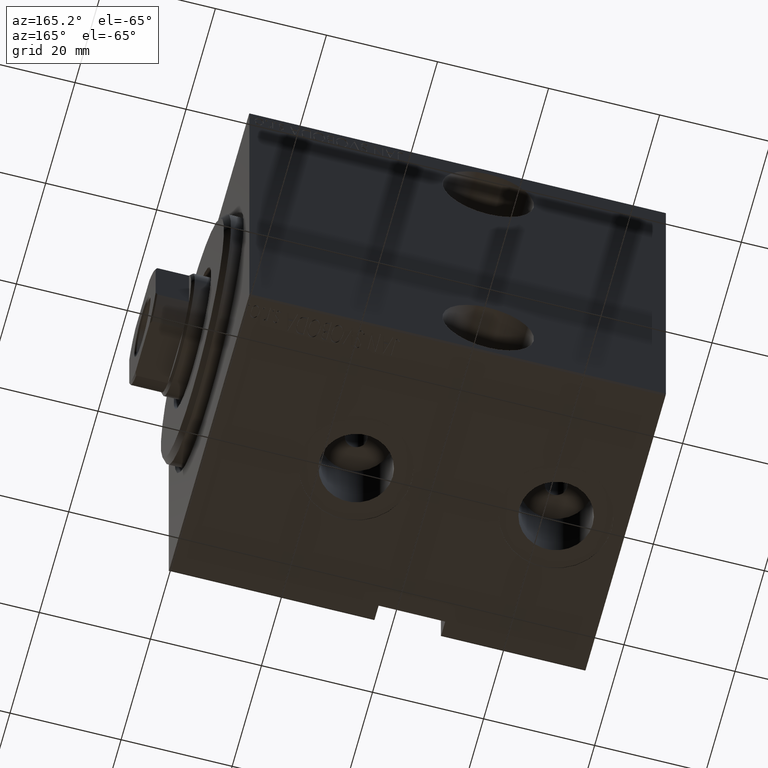
[diagram: clean part render]
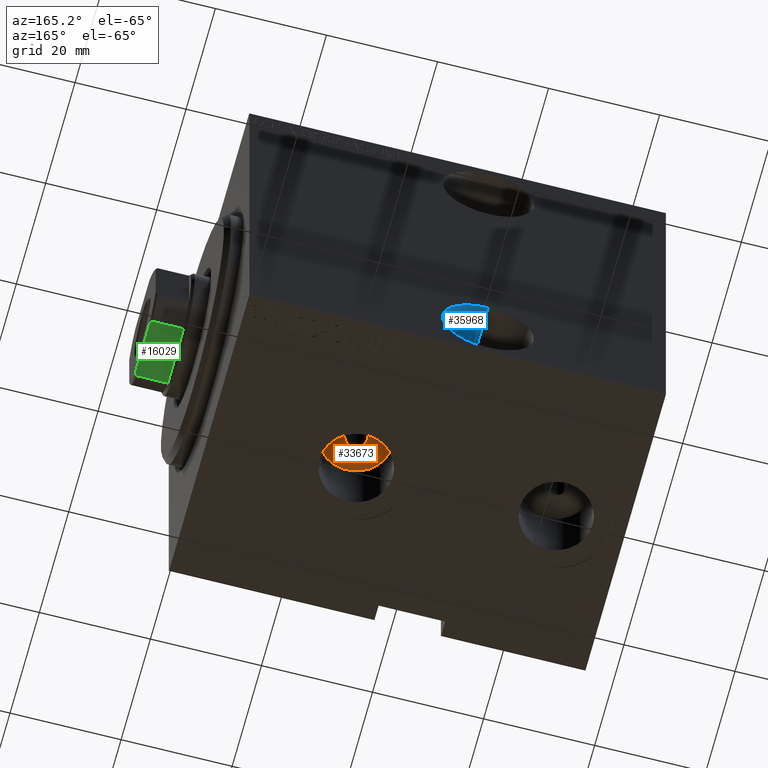
[diagram: same view with three faces highlighted in distinct colors, each labeled with its STEP entity id]
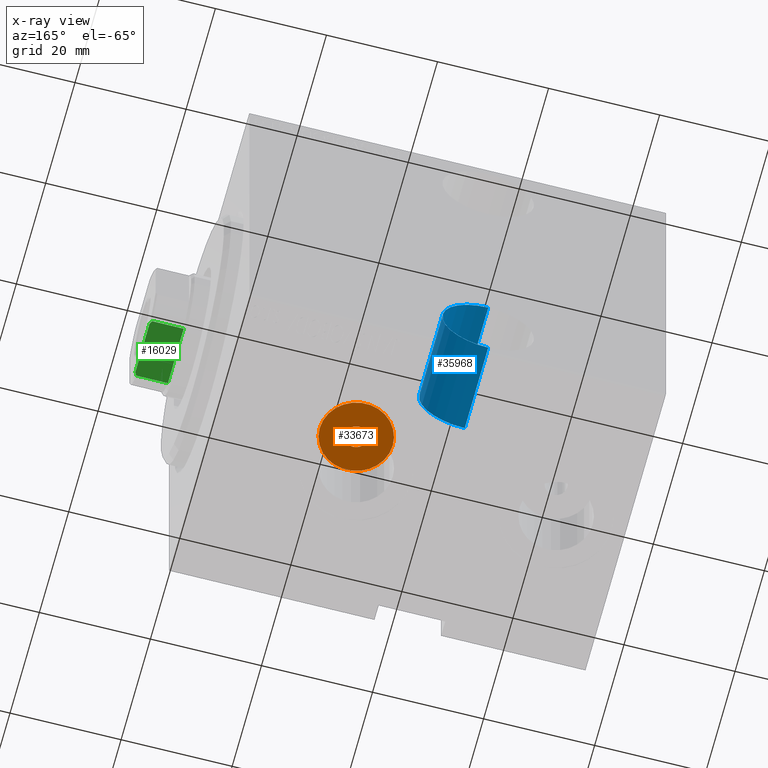
[diagram: x-ray of the same camera — body ghosted, the three highlighted faces saturated]
A machine part, auxiliary view with three faces highlighted in distinct colors.
The next image is the same camera in x-ray (body ghosted, the three faces saturated) — at least one of them is partly hidden behind the body in this view.
Their STEP definitions:

[orange] entity #33673 — the highlighted planar face has unit normal (-0, 0, -1).
#134 = CARTESIAN_POINT ( 'NONE',  ( 26.50000000000000000, -2.726986211408916281E-15, -24.50000000000000000 ) ) ;
#3264 = DIRECTION ( 'NONE',  ( 0.000000000000000000, 0.000000000000000000, -1.000000000000000000 ) ) ;
#3375 = DIRECTION ( 'NONE',  ( -1.000000000000000000, 0.000000000000000000, -0.000000000000000000 ) ) ;
#5901 = EDGE_CURVE ( 'NONE', #18575, #32849, #31322, .T. ) ;
#7254 = ORIENTED_EDGE ( 'NONE', *, *, #33618, .T. ) ;
#7514 = VERTEX_POINT ( 'NONE', #40315 ) ;
#8061 = VERTEX_POINT ( 'NONE', #10738 ) ;
#9639 = FACE_OUTER_BOUND ( 'NONE', #12896, .T. ) ;
#9712 = DIRECTION ( 'NONE',  ( -1.000000000000000000, 0.000000000000000000, 0.000000000000000000 ) ) ;
#10738 = CARTESIAN_POINT ( 'NONE',  ( 19.91999999999999815, -2.726986211408916281E-15, -24.50000000000000000 ) ) ;
#12071 = CARTESIAN_POINT ( 'NONE',  ( 26.50000000000000000, -2.726986211408916281E-15, -24.50000000000000000 ) ) ;
#12298 = ORIENTED_EDGE ( 'NONE', *, *, #5901, .F. ) ;
#12896 = EDGE_LOOP ( 'NONE', ( #25681, #7254 ) ) ;
#12954 = DIRECTION ( 'NONE',  ( 0.000000000000000000, 0.000000000000000000, -1.000000000000000000 ) ) ;
#13942 = FACE_BOUND ( 'NONE', #37915, .T. ) ;
#15678 = CIRCLE ( 'NONE', #40558, 6.580000000000002736 ) ;
#16540 = DIRECTION ( 'NONE',  ( -1.000000000000000000, 0.000000000000000000, 0.000000000000000000 ) ) ;
#16965 = DIRECTION ( 'NONE',  ( 0.000000000000000000, 0.000000000000000000, -1.000000000000000000 ) ) ;
#16986 = CARTESIAN_POINT ( 'NONE',  ( 28.49999999999999645, -2.482056851579445985E-15, -24.50000000000000000 ) ) ;
#18575 = VERTEX_POINT ( 'NONE', #16986 ) ;
#19671 = CARTESIAN_POINT ( 'NONE',  ( 26.50000000000000000, -2.726986211408916281E-15, -24.50000000000000000 ) ) ;
#21913 = AXIS2_PLACEMENT_3D ( 'NONE', #12071, #34566, #24619 ) ;
#22539 = AXIS2_PLACEMENT_3D ( 'NONE', #134, #39684, #3375 ) ;
#24151 = ORIENTED_EDGE ( 'NONE', *, *, #38487, .F. ) ;
#24591 = AXIS2_PLACEMENT_3D ( 'NONE', #26290, #16965, #16540 ) ;
#24619 = DIRECTION ( 'NONE',  ( -1.000000000000000000, 0.000000000000000000, 0.000000000000000000 ) ) ;
#25681 = ORIENTED_EDGE ( 'NONE', *, *, #32499, .T. ) ;
#25956 = DIRECTION ( 'NONE',  ( -1.000000000000000000, 0.000000000000000000, 0.000000000000000000 ) ) ;
#26290 = CARTESIAN_POINT ( 'NONE',  ( 26.50000000000000000, -2.726986211408916281E-15, -24.50000000000000000 ) ) ;
#30901 = CIRCLE ( 'NONE', #24591, 6.580000000000002736 ) ;
#31058 = CARTESIAN_POINT ( 'NONE',  ( 24.50000000000000000, -2.726986211408916281E-15, -24.50000000000000000 ) ) ;
#31322 = CIRCLE ( 'NONE', #38911, 1.999999999999998224 ) ;
#31780 = CARTESIAN_POINT ( 'NONE',  ( 26.50000000000000000, -2.726986211408916281E-15, -24.50000000000000000 ) ) ;
#32499 = EDGE_CURVE ( 'NONE', #8061, #7514, #15678, .T. ) ;
#32849 = VERTEX_POINT ( 'NONE', #31058 ) ;
#33618 = EDGE_CURVE ( 'NONE', #7514, #8061, #30901, .T. ) ;
#33673 = ADVANCED_FACE ( 'NONE', ( #13942, #9639 ), #39466, .T. ) ;
#34566 = DIRECTION ( 'NONE',  ( 0.000000000000000000, 0.000000000000000000, -1.000000000000000000 ) ) ;
#35022 = CIRCLE ( 'NONE', #21913, 1.999999999999998224 ) ;
#37915 = EDGE_LOOP ( 'NONE', ( #24151, #12298 ) ) ;
#38487 = EDGE_CURVE ( 'NONE', #32849, #18575, #35022, .T. ) ;
#38911 = AXIS2_PLACEMENT_3D ( 'NONE', #31780, #12954, #9712 ) ;
#39466 = PLANE ( 'NONE',  #22539 ) ;
#39684 = DIRECTION ( 'NONE',  ( 0.000000000000000000, 0.000000000000000000, -1.000000000000000000 ) ) ;
#40315 = CARTESIAN_POINT ( 'NONE',  ( 33.07999999999999829, -1.921168617569957634E-15, -24.50000000000000000 ) ) ;
#40558 = AXIS2_PLACEMENT_3D ( 'NONE', #19671, #3264, #25956 ) ;

[blue] entity #35968 — the highlighted cylindrical surface (partial cylindrical patch) has radius 8.25 mm, axis along (0, 1, 0).
#290 = ORIENTED_EDGE ( 'NONE', *, *, #1206, .T. ) ;
#459 = DIRECTION ( 'NONE',  ( 0.000000000000000000, 0.000000000000000000, -1.000000000000000000 ) ) ;
#1206 = EDGE_CURVE ( 'NONE', #9574, #9111, #18847, .T. ) ;
#1890 = VERTEX_POINT ( 'NONE', #33421 ) ;
#3936 = AXIS2_PLACEMENT_3D ( 'NONE', #9545, #6310, #31608 ) ;
#5562 = CARTESIAN_POINT ( 'NONE',  ( 43.00000000000001421, -11.50000000000000888, -35.75000000000000711 ) ) ;
#6310 = DIRECTION ( 'NONE',  ( -0.000000000000000000, -1.000000000000000000, 1.963837897332234442E-16 ) ) ;
#6679 = VECTOR ( 'NONE', #38785, 1000.000000000000000 ) ;
#7202 = DIRECTION ( 'NONE',  ( 0.000000000000000000, -1.000000000000000000, 1.963837897332234442E-16 ) ) ;
#9111 = VERTEX_POINT ( 'NONE', #36496 ) ;
#9545 = CARTESIAN_POINT ( 'NONE',  ( 43.00000000000001421, -11.50000000000000711, -27.50000000000000355 ) ) ;
#9574 = VERTEX_POINT ( 'NONE', #30129 ) ;
#10042 = VERTEX_POINT ( 'NONE', #13535 ) ;
#11061 = CARTESIAN_POINT ( 'NONE',  ( 43.00000000000001421, -11.50000000000000711, -27.50000000000000355 ) ) ;
#12788 = FACE_OUTER_BOUND ( 'NONE', #18138, .T. ) ;
#13535 = CARTESIAN_POINT ( 'NONE',  ( 43.00000000000001421, -11.50000000000000533, -19.25000000000000000 ) ) ;
#13796 = ORIENTED_EDGE ( 'NONE', *, *, #41425, .F. ) ;
#18138 = EDGE_LOOP ( 'NONE', ( #29162, #18866, #290, #13796 ) ) ;
#18723 = DIRECTION ( 'NONE',  ( -0.000000000000000000, -1.000000000000000000, 1.963837897332234442E-16 ) ) ;
#18847 = CIRCLE ( 'NONE', #38917, 8.250000000000003553 ) ;
#18866 = ORIENTED_EDGE ( 'NONE', *, *, #35726, .T. ) ;
#21869 = CYLINDRICAL_SURFACE ( 'NONE', #3936, 8.250000000000000000 ) ;
#25350 = CIRCLE ( 'NONE', #26746, 8.250000000000000000 ) ;
#26186 = CARTESIAN_POINT ( 'NONE',  ( 43.00000000000001421, -27.50000000000000711, -27.50000000000000000 ) ) ;
#26746 = AXIS2_PLACEMENT_3D ( 'NONE', #11061, #7202, #41101 ) ;
#26838 = VECTOR ( 'NONE', #18723, 1000.000000000000000 ) ;
#29162 = ORIENTED_EDGE ( 'NONE', *, *, #32261, .F. ) ;
#29490 = LINE ( 'NONE', #32532, #6679 ) ;
#30129 = CARTESIAN_POINT ( 'NONE',  ( 43.00000000000001421, -27.50000000000000711, -19.24999999999999645 ) ) ;
#31608 = DIRECTION ( 'NONE',  ( 0.000000000000000000, -2.102695122396129916E-16, -1.000000000000000000 ) ) ;
#32261 = EDGE_CURVE ( 'NONE', #10042, #1890, #25350, .T. ) ;
#32532 = CARTESIAN_POINT ( 'NONE',  ( 43.00000000000001421, -11.50000000000000533, -19.25000000000000000 ) ) ;
#33421 = CARTESIAN_POINT ( 'NONE',  ( 43.00000000000001421, -11.50000000000000888, -35.75000000000000711 ) ) ;
#35726 = EDGE_CURVE ( 'NONE', #10042, #9574, #29490, .T. ) ;
#35968 = ADVANCED_FACE ( 'NONE', ( #12788 ), #21869, .F. ) ;
#36331 = DIRECTION ( 'NONE',  ( 0.000000000000000000, -1.000000000000000000, 1.963837897332234442E-16 ) ) ;
#36496 = CARTESIAN_POINT ( 'NONE',  ( 43.00000000000001421, -27.50000000000000711, -35.75000000000000711 ) ) ;
#38785 = DIRECTION ( 'NONE',  ( -0.000000000000000000, -1.000000000000000000, 1.963837897332234442E-16 ) ) ;
#38917 = AXIS2_PLACEMENT_3D ( 'NONE', #26186, #36331, #459 ) ;
#39046 = LINE ( 'NONE', #5562, #26838 ) ;
#41101 = DIRECTION ( 'NONE',  ( 0.000000000000000000, -2.102695122396129916E-16, -1.000000000000000000 ) ) ;
#41425 = EDGE_CURVE ( 'NONE', #1890, #9111, #39046, .T. ) ;

[green] entity #16029 — the highlighted planar face has unit normal (0, -0, 1).
#1095 = CARTESIAN_POINT ( 'NONE',  ( 8.999999999999998224, 8.999999999999998224, 77.00000000000001421 ) ) ;
#1484 = VERTEX_POINT ( 'NONE', #29373 ) ;
#1622 = VERTEX_POINT ( 'NONE', #24570 ) ;
#2402 = VERTEX_POINT ( 'NONE', #9703 ) ;
#3737 = VERTEX_POINT ( 'NONE', #21501 ) ;
#4014 = DIRECTION ( 'NONE',  ( -0.000000000000000000, -0.000000000000000000, 1.000000000000000000 ) ) ;
#7725 = VECTOR ( 'NONE', #22711, 1000.000000000000000 ) ;
#9703 = CARTESIAN_POINT ( 'NONE',  ( 8.999999999999998224, 5.408326913195988794, 71.00000000000002842 ) ) ;
#10119 = AXIS2_PLACEMENT_3D ( 'NONE', #1095, #33753, #14068 ) ;
#10170 = ORIENTED_EDGE ( 'NONE', *, *, #34451, .F. ) ;
#10275 = CARTESIAN_POINT ( 'NONE',  ( 9.000000000000001776, -4.800000000000007816, 77.00000000000001421 ) ) ;
#12038 = B_SPLINE_CURVE_WITH_KNOTS ( 'NONE', 3,
 ( #38964, #35082, #35732, #38108 ),
 .UNSPECIFIED., .F., .F.,
 ( 4, 4 ),
 ( 0.000000000000000000, 0.0006782784334759163350 ),
 .UNSPECIFIED. ) ;
#12676 = CARTESIAN_POINT ( 'NONE',  ( 8.999999999999996447, -5.408326913195990571, 71.00000000000002842 ) ) ;
#14015 = ORIENTED_EDGE ( 'NONE', *, *, #27956, .T. ) ;
#14030 = B_SPLINE_CURVE_WITH_KNOTS ( 'NONE', 3,
 ( #37908, #24938, #37684, #17582 ),
 .UNSPECIFIED., .F., .F.,
 ( 4, 4 ),
 ( 0.000000000000000000, 0.0006782784334759217560 ),
 .UNSPECIFIED. ) ;
#14068 = DIRECTION ( 'NONE',  ( 1.927470528863119049E-16, -1.000000000000000000, 0.000000000000000000 ) ) ;
#16029 = ADVANCED_FACE ( 'NONE', ( #40034 ), #20550, .F. ) ;
#16639 = LINE ( 'NONE', #25948, #7725 ) ;
#17582 = CARTESIAN_POINT ( 'NONE',  ( 8.999999999999996447, -5.408326913195990571, 76.70000000000001705 ) ) ;
#18049 = DIRECTION ( 'NONE',  ( -1.927470528863119049E-16, 1.000000000000000000, -0.000000000000000000 ) ) ;
#19163 = VECTOR ( 'NONE', #34090, 1000.000000000000000 ) ;
#19603 = EDGE_CURVE ( 'NONE', #41422, #2402, #31041, .T. ) ;
#20550 = PLANE ( 'NONE',  #10119 ) ;
#21501 = CARTESIAN_POINT ( 'NONE',  ( 8.999999999999998224, 4.800000000000010481, 77.00000000000001421 ) ) ;
#21724 = CARTESIAN_POINT ( 'NONE',  ( 8.999999999999998224, 8.999999999999998224, 71.00000000000001421 ) ) ;
#21942 = ORIENTED_EDGE ( 'NONE', *, *, #19603, .T. ) ;
#22711 = DIRECTION ( 'NONE',  ( -1.927470528863119049E-16, 1.000000000000000000, -0.000000000000000000 ) ) ;
#24570 = CARTESIAN_POINT ( 'NONE',  ( 8.999999999999996447, -5.408326913195990571, 76.70000000000001705 ) ) ;
#24938 = CARTESIAN_POINT ( 'NONE',  ( 9.000000000000001776, -5.004607318780307068, 76.90371420292693472 ) ) ;
#25948 = CARTESIAN_POINT ( 'NONE',  ( 8.999999999999998224, 8.999999999999998224, 77.00000000000001421 ) ) ;
#26504 = CARTESIAN_POINT ( 'NONE',  ( 8.999999999999998224, 5.408326913195988794, -0.001000000000001000089 ) ) ;
#27956 = EDGE_CURVE ( 'NONE', #2402, #1484, #30179, .T. ) ;
#29127 = EDGE_CURVE ( 'NONE', #1484, #3737, #12038, .T. ) ;
#29373 = CARTESIAN_POINT ( 'NONE',  ( 8.999999999999998224, 5.408326913195988794, 76.70000000000001705 ) ) ;
#29856 = EDGE_CURVE ( 'NONE', #33619, #1622, #14030, .T. ) ;
#30179 = LINE ( 'NONE', #26504, #35177 ) ;
#31041 = LINE ( 'NONE', #21724, #38546 ) ;
#31453 = EDGE_CURVE ( 'NONE', #33619, #3737, #16639, .T. ) ;
#31739 = ORIENTED_EDGE ( 'NONE', *, *, #31453, .F. ) ;
#32132 = ORIENTED_EDGE ( 'NONE', *, *, #29127, .T. ) ;
#32268 = EDGE_LOOP ( 'NONE', ( #14015, #32132, #31739, #37346, #10170, #21942 ) ) ;
#33619 = VERTEX_POINT ( 'NONE', #10275 ) ;
#33753 = DIRECTION ( 'NONE',  ( -1.000000000000000000, -1.927470528863119049E-16, 0.000000000000000000 ) ) ;
#34090 = DIRECTION ( 'NONE',  ( -0.000000000000000000, -0.000000000000000000, 1.000000000000000000 ) ) ;
#34451 = EDGE_CURVE ( 'NONE', #41422, #1622, #37334, .T. ) ;
#34936 = CARTESIAN_POINT ( 'NONE',  ( 8.999999999999996447, -5.408326913195990571, -0.001000000000001000089 ) ) ;
#35082 = CARTESIAN_POINT ( 'NONE',  ( 8.999999999999998224, 5.207299490555477917, 76.80354495430069051 ) ) ;
#35177 = VECTOR ( 'NONE', #4014, 1000.000000000000000 ) ;
#35732 = CARTESIAN_POINT ( 'NONE',  ( 8.999999999999998224, 5.004607318780313285, 76.90371420292693472 ) ) ;
#37334 = LINE ( 'NONE', #34936, #19163 ) ;
#37346 = ORIENTED_EDGE ( 'NONE', *, *, #29856, .T. ) ;
#37684 = CARTESIAN_POINT ( 'NONE',  ( 9.000000000000001776, -5.207299490555479693, 76.80354495430069051 ) ) ;
#37908 = CARTESIAN_POINT ( 'NONE',  ( 9.000000000000001776, -4.800000000000007816, 77.00000000000001421 ) ) ;
#38108 = CARTESIAN_POINT ( 'NONE',  ( 8.999999999999998224, 4.800000000000010481, 77.00000000000001421 ) ) ;
#38546 = VECTOR ( 'NONE', #18049, 1000.000000000000000 ) ;
#38964 = CARTESIAN_POINT ( 'NONE',  ( 8.999999999999998224, 5.408326913195988794, 76.70000000000001705 ) ) ;
#40034 = FACE_OUTER_BOUND ( 'NONE', #32268, .T. ) ;
#41422 = VERTEX_POINT ( 'NONE', #12676 ) ;